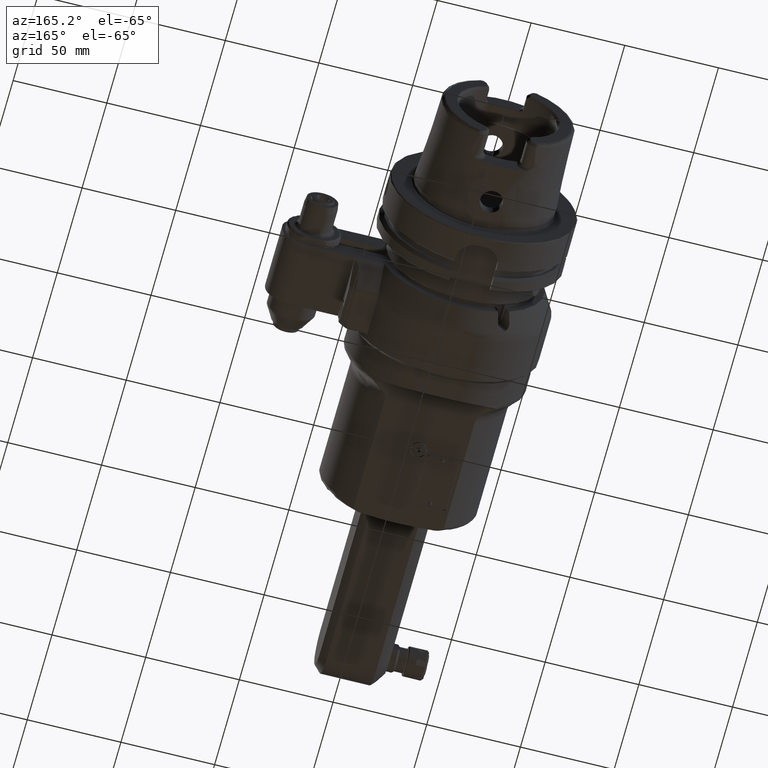
[diagram: clean part render]
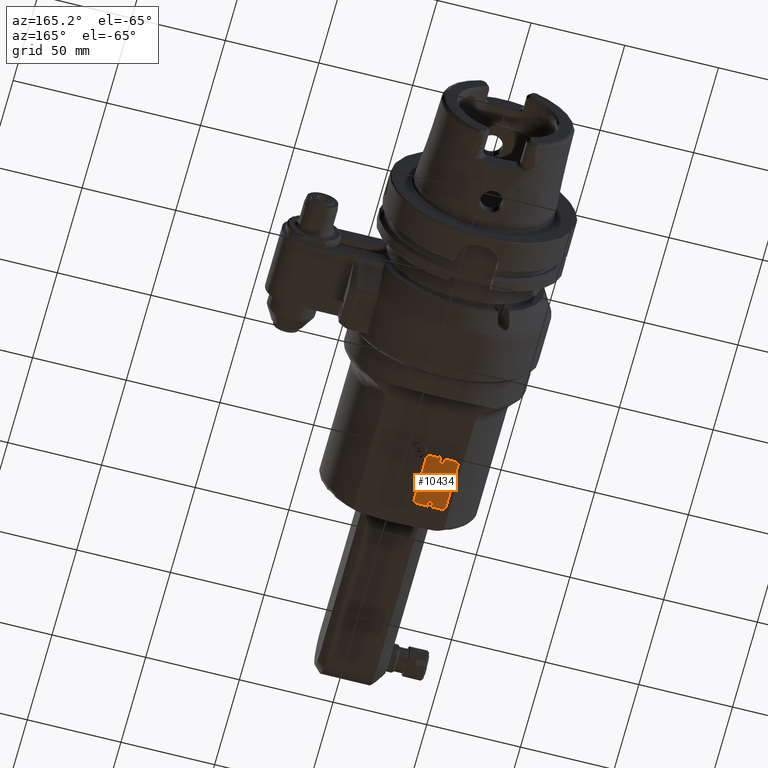
[diagram: same view with one face highlighted and labeled with its STEP entity id]
A machine part, auxiliary view. The second image highlights one B-rep face of the part: STEP entity #10434.
In plain terms, the highlighted planar face has unit normal (0, -0, 1).
Its self-contained STEP definition (entity closure, byte-faithful):
#264=FACE_BOUND('',#2250,.T.);
#265=FACE_BOUND('',#2251,.T.);
#1004=CIRCLE('',#11366,2.);
#1005=CIRCLE('',#11368,2.);
#1006=CIRCLE('',#11369,2.);
#1007=CIRCLE('',#11370,2.);
#1008=CIRCLE('',#11371,1.25);
#1009=CIRCLE('',#11372,1.25);
#1553=FACE_OUTER_BOUND('',#2249,.T.);
#2249=EDGE_LOOP('',(#7967,#7968,#7969,#7970,#7971,#7972,#7973,#7974));
#2250=EDGE_LOOP('',(#7975));
#2251=EDGE_LOOP('',(#7976));
#2965=LINE('',#16902,#3717);
#2968=LINE('',#16911,#3720);
#2969=LINE('',#16914,#3721);
#2970=LINE('',#16918,#3722);
#3717=VECTOR('',#13316,13.);
#3720=VECTOR('',#13325,24.);
#3721=VECTOR('',#13328,24.);
#3722=VECTOR('',#13331,13.);
#4584=VERTEX_POINT('',#16899);
#4585=VERTEX_POINT('',#16901);
#4586=VERTEX_POINT('',#16905);
#4587=VERTEX_POINT('',#16909);
#4588=VERTEX_POINT('',#16910);
#4589=VERTEX_POINT('',#16913);
#4590=VERTEX_POINT('',#16915);
#4591=VERTEX_POINT('',#16917);
#4592=VERTEX_POINT('',#16920);
#4593=VERTEX_POINT('',#16922);
#5811=EDGE_CURVE('',#4584,#4585,#2965,.T.);
#5814=EDGE_CURVE('',#4584,#4586,#1004,.T.);
#5815=EDGE_CURVE('',#4587,#4588,#2968,.T.);
#5816=EDGE_CURVE('',#4587,#4585,#1005,.T.);
#5817=EDGE_CURVE('',#4589,#4586,#2969,.T.);
#5818=EDGE_CURVE('',#4589,#4590,#1006,.T.);
#5819=EDGE_CURVE('',#4591,#4590,#2970,.T.);
#5820=EDGE_CURVE('',#4591,#4588,#1007,.T.);
#5821=EDGE_CURVE('',#4592,#4592,#1008,.T.);
#5822=EDGE_CURVE('',#4593,#4593,#1009,.T.);
#7967=ORIENTED_EDGE('',*,*,#5815,.F.);
#7968=ORIENTED_EDGE('',*,*,#5816,.T.);
#7969=ORIENTED_EDGE('',*,*,#5811,.F.);
#7970=ORIENTED_EDGE('',*,*,#5814,.T.);
#7971=ORIENTED_EDGE('',*,*,#5817,.F.);
#7972=ORIENTED_EDGE('',*,*,#5818,.T.);
#7973=ORIENTED_EDGE('',*,*,#5819,.F.);
#7974=ORIENTED_EDGE('',*,*,#5820,.T.);
#7975=ORIENTED_EDGE('',*,*,#5821,.T.);
#7976=ORIENTED_EDGE('',*,*,#5822,.T.);
#9985=PLANE('',#11367);
#10434=ADVANCED_FACE('',(#1553,#264,#265),#9985,.F.);
#11366=AXIS2_PLACEMENT_3D('',#16907,#13321,#13322);
#11367=AXIS2_PLACEMENT_3D('',#16908,#13323,#13324);
#11368=AXIS2_PLACEMENT_3D('',#16912,#13326,#13327);
#11369=AXIS2_PLACEMENT_3D('',#16916,#13329,#13330);
#11370=AXIS2_PLACEMENT_3D('',#16919,#13332,#13333);
#11371=AXIS2_PLACEMENT_3D('',#16921,#13334,#13335);
#11372=AXIS2_PLACEMENT_3D('',#16923,#13336,#13337);
#13316=DIRECTION('',(0.,1.,0.));
#13321=DIRECTION('center_axis',(0.,0.,-1.));
#13322=DIRECTION('ref_axis',(1.,0.,0.));
#13323=DIRECTION('center_axis',(0.,0.,1.));
#13324=DIRECTION('ref_axis',(0.,1.,0.));
#13325=DIRECTION('',(-1.,0.,0.));
#13326=DIRECTION('center_axis',(0.,0.,-1.));
#13327=DIRECTION('ref_axis',(2.13162820728E-14,1.,0.));
#13328=DIRECTION('',(1.,0.,0.));
#13329=DIRECTION('center_axis',(0.,0.,-1.));
#13330=DIRECTION('ref_axis',(3.19744231092E-14,-1.,0.));
#13331=DIRECTION('',(0.,-1.,0.));
#13332=DIRECTION('center_axis',(0.,0.,-1.));
#13333=DIRECTION('ref_axis',(-1.,0.,0.));
#13334=DIRECTION('center_axis',(0.,0.,1.));
#13335=DIRECTION('ref_axis',(-1.,0.,0.));
#13336=DIRECTION('center_axis',(0.,0.,1.));
#13337=DIRECTION('ref_axis',(-1.,0.,0.));
#16899=CARTESIAN_POINT('',(66.75000099027,-20.00000035153,-34.99999997169));
#16901=CARTESIAN_POINT('',(66.75000099027,-7.000000351528,-34.99999997169));
#16902=CARTESIAN_POINT('',(66.75000099027,-20.00000035153,-34.99999997169));
#16905=CARTESIAN_POINT('',(64.75000099027,-22.00000035153,-34.99999997169));
#16907=CARTESIAN_POINT('Origin',(64.75000099027,-20.00000035153,-34.99999997169));
#16908=CARTESIAN_POINT('Origin',(46.3058490826,-19.16301395554,-34.99999997169));
#16909=CARTESIAN_POINT('',(64.75000099027,-5.000000351528,-34.99999997169));
#16910=CARTESIAN_POINT('',(40.75000099027,-5.000000351528,-34.99999997169));
#16911=CARTESIAN_POINT('',(64.75000099027,-5.000000351528,-34.99999997169));
#16912=CARTESIAN_POINT('Origin',(64.75000099027,-7.000000351528,-34.99999997169));
#16913=CARTESIAN_POINT('',(40.75000099027,-22.00000035153,-34.99999997169));
#16914=CARTESIAN_POINT('',(40.75000099027,-22.00000035153,-34.99999997169));
#16915=CARTESIAN_POINT('',(38.75000099027,-20.00000035153,-34.99999997169));
#16916=CARTESIAN_POINT('Origin',(40.75000099027,-20.00000035153,-34.99999997169));
#16917=CARTESIAN_POINT('',(38.75000099027,-7.000000351528,-34.99999997169));
#16918=CARTESIAN_POINT('',(38.75000099027,-7.000000351528,-34.99999997169));
#16919=CARTESIAN_POINT('Origin',(40.75000099027,-7.000000351528,-34.99999997169));
#16920=CARTESIAN_POINT('',(39.00000099027,-13.50000035153,-34.99999997169));
#16921=CARTESIAN_POINT('Origin',(40.25000099027,-13.50000035153,-34.99999997169));
#16922=CARTESIAN_POINT('',(64.00000099027,-13.50000035153,-34.99999997169));
#16923=CARTESIAN_POINT('Origin',(65.25000099027,-13.50000035153,-34.99999997169));